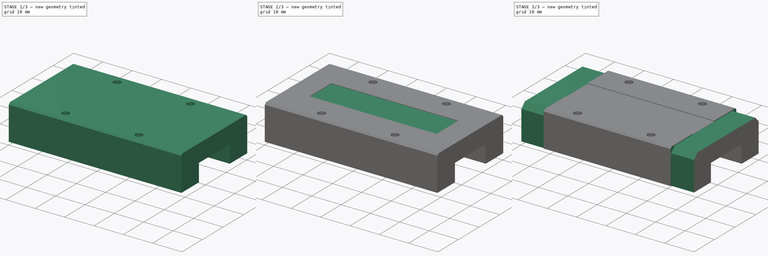
[diagram: build sequence overview — one tinted view per stage of 3, left to right]
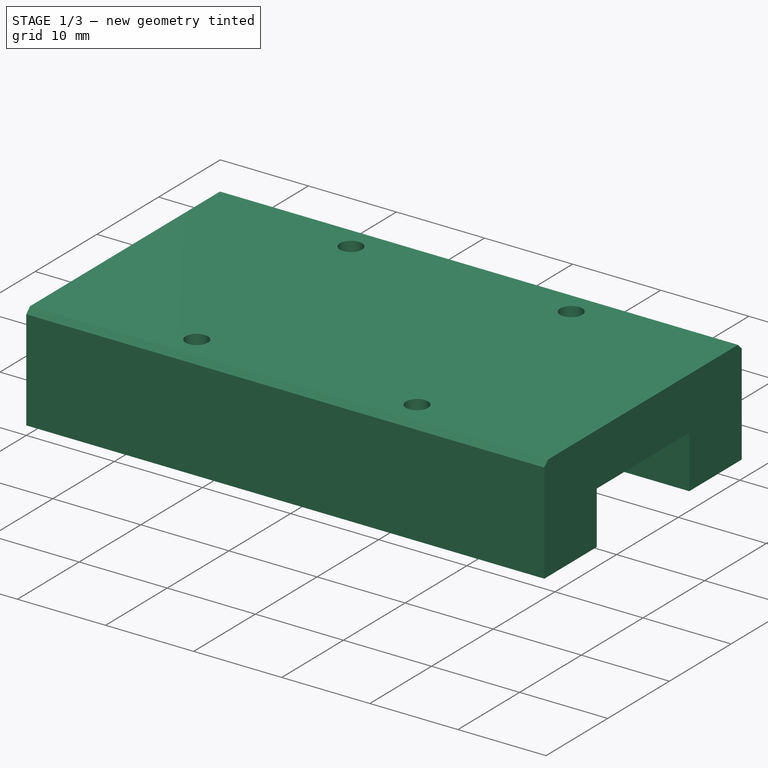
[diagram: stage 1 of 3 — iso view after this stage's code; geometry added in this stage tinted green]
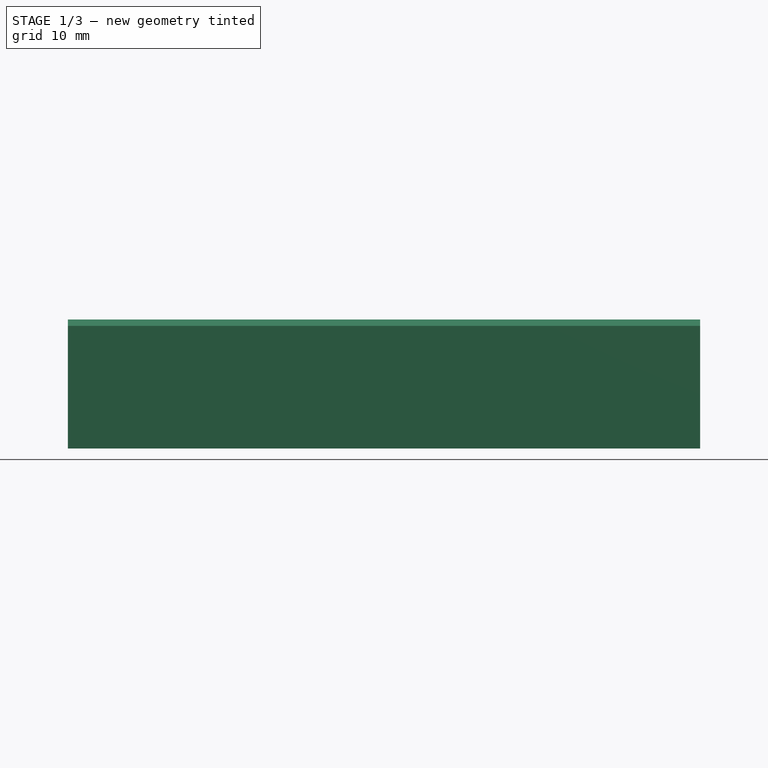
[diagram: stage 1 of 3 — front view after this stage's code; geometry added in this stage tinted green]
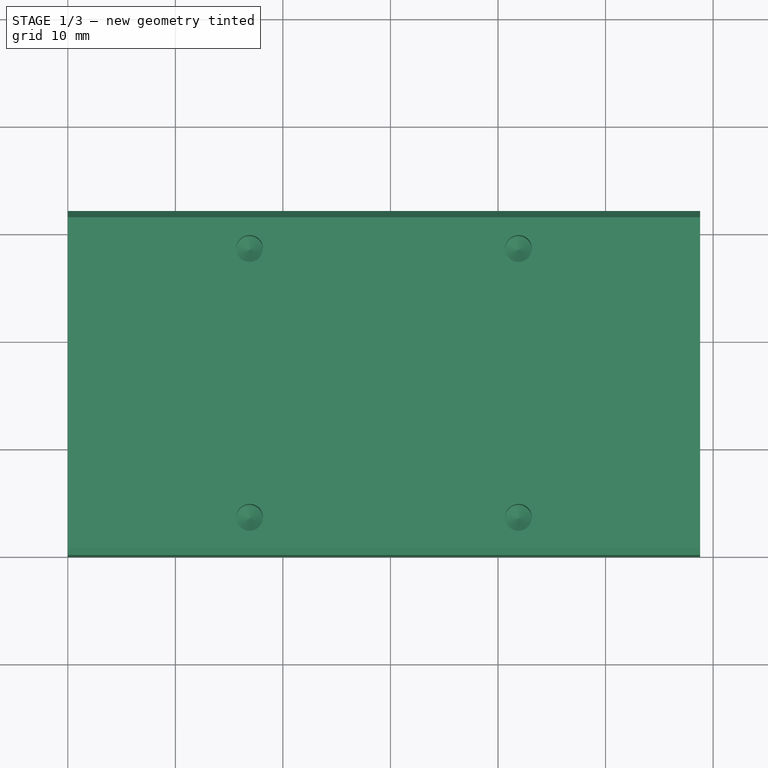
[diagram: stage 1 of 3 — top view after this stage's code; geometry added in this stage tinted green]
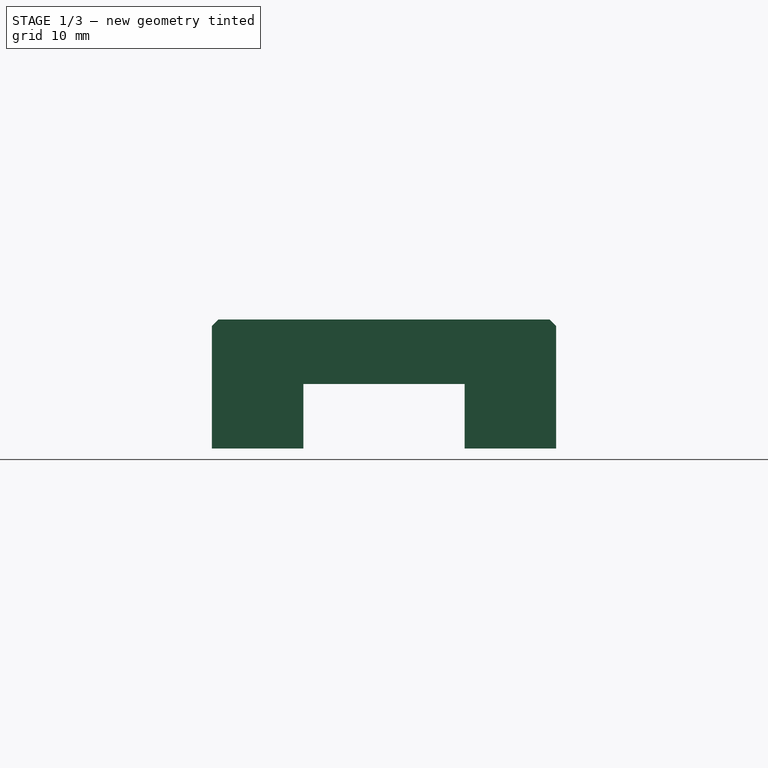
[diagram: stage 1 of 3 — right view after this stage's code; geometry added in this stage tinted green]
FCSTD DOCUMENT  (FreeCAD 0.18R4 (GitTag))
Label: Block MGN15H
License: All rights reserved
LicenseURL: http://en.wikipedia.org/wiki/All_rights_reserved
objects: Sketcher::SketchObject×4, PartDesign::Pocket×2, PartDesign::Pad×1, PartDesign::Hole×1, PartDesign::Point×1, PartDesign::Plane×1, PartDesign::Mirrored×1, PartDesign::Body×1
note: 16 computed .brp shape members not serialized (recipe doc carries the construction recipe); baked Part::Feature solids carry a one-line shape summary decoded from their .brp

FEATURE [Sketcher::SketchObject] Sketch
  MapMode = 5
  Placement = pos=(0,0,0) rot=(0.57735,0.57735,0.57735;2.0944rad)
  Support = -> [YZ_Plane]
  sketch-geometry (10):
    g0: LineSegment StartX=0 StartY=0 StartZ=0 EndX=0 EndY=11.4 EndZ=0
    g1: LineSegment StartX=0 StartY=11.4 StartZ=0 EndX=0.6 EndY=12 EndZ=0
    g2: LineSegment StartX=0.6 StartY=12 StartZ=0 EndX=31.4 EndY=12 EndZ=0
    g3: LineSegment StartX=31.4 StartY=12 StartZ=0 EndX=32 EndY=11.4 EndZ=0
    g4: LineSegment StartX=32 StartY=11.4 StartZ=0 EndX=32 EndY=0 EndZ=0
    g5: LineSegment StartX=0 StartY=0 StartZ=0 EndX=8.5 EndY=0 EndZ=0
    g6: LineSegment StartX=8.5 StartY=0 StartZ=0 EndX=8.5 EndY=6 EndZ=0
    g7: LineSegment StartX=8.5 StartY=6 StartZ=0 EndX=23.5 EndY=6 EndZ=0
    g8: LineSegment StartX=32 StartY=0 StartZ=0 EndX=23.5 EndY=0 EndZ=0
    g9: LineSegment StartX=23.5 StartY=0 StartZ=0 EndX=23.5 EndY=6 EndZ=0
  constraints (29):
    c: Coincident(g-1,g0)
    c: PointOnObject(g0,g-2)
    c: Coincident(g0,g1)
    c: Coincident(g1,g2)
    c: Horizontal(g2)
    c: Coincident(g2,g3)
    c: Coincident(g3,g4)
    c: PointOnObject(g4,g-1)
    c: Vertical(g4)
    c: Coincident(g-1,g5)
    c: Horizontal(g5)
    c: Coincident(g5,g6)
    c: Vertical(g6)
    c: Coincident(g6,g7)
    c: Horizontal(g7)
    c: Coincident(g4,g8)
    c: PointOnObject(g8,g-1)
    c: Coincident(g8,g9)
    c: Coincident(g9,g7)
    c: Vertical(g9)
    c: Angle(g5,g1) = 0.785398
    c: Perpendicular(g3,g1)
    c: Distance(g-1,g4) = 32
    c: Distance(g3,g2) = 0.6
    c: Distance(g-1,g2) = 12
    c: Distance(g5) = 8.5
    c: Horizontal(g3,g0)
    c: Distance(g6) = 6
    c: Equal(g8,g5)
FEATURE [PartDesign::Pad] Pad
  Length = 58.8
  Length2 = 100
  Placement = pos=(0,0,0) rot=(0.57735,0.57735,0.57735;2.0944rad)
  Profile = -> Sketch
  Type = 0
FEATURE [Sketcher::SketchObject] Sketch001
  ExternalGeometry = -> [Pad]
  MapMode = 5
  Placement = pos=(-3.4e-15,5.3e-15,12) rot=(0,0,-1;1.5708rad)
  Support = -> [Pad]
  sketch-geometry (9):
    g0: Circle CenterX=-28.5 CenterY=41.9 CenterZ=0 NormalX=0 NormalY=0 NormalZ=1 AngleXU=0 Radius=1.5
    g1: Circle CenterX=-3.5 CenterY=41.9 CenterZ=0 NormalX=0 NormalY=0 NormalZ=1 AngleXU=0 Radius=1.5
    g2: Circle CenterX=-3.5 CenterY=16.9 CenterZ=0 NormalX=0 NormalY=0 NormalZ=1 AngleXU=0 Radius=1.5
    g3: Circle CenterX=-28.5 CenterY=16.9 CenterZ=0 NormalX=0 NormalY=0 NormalZ=1 AngleXU=0 Radius=1.5
    g4: LineSegment [constr] StartX=-28.5 StartY=41.9 StartZ=0 EndX=-3.5 EndY=16.9 EndZ=0
    g5: LineSegment [constr] StartX=-3.5 StartY=41.9 StartZ=0 EndX=-28.5 EndY=16.9 EndZ=0
    g6: LineSegment [constr] StartX=-32 StartY=58.8 StartZ=0 EndX=0 EndY=0 EndZ=0
    g7: LineSegment [constr] StartX=0 StartY=58.8 StartZ=0 EndX=-32 EndY=0 EndZ=0
    g8: GeomPoint X=-16 Y=29.4 Z=0
  constraints (22):
    c: Horizontal(g2,g3)
    c: Horizontal(g1,g0)
    c: Vertical(g1,g2)
    c: Vertical(g0,g3)
    c: Radius(g2) = 1.5
    c: Equal(g2,g3)
    c: Equal(g3,g0)
    c: Equal(g0,g1)
    c: Distance(g2,g3) = 25
    c: Distance(g3,g0) = 25
    c: Coincident(g4,g0)
    c: Coincident(g4,g2)
    c: Coincident(g5,g1)
    c: Coincident(g5,g3)
    c: Coincident(g6,g-3)
    c: Coincident(g6,g-1)
    c: Coincident(g7,g-4)
    c: Coincident(g7,g-3)
    c: PointOnObject(g8,g7)
    c: PointOnObject(g8,g5)
    c: PointOnObject(g8,g6)
    c: PointOnObject(g8,g4)
FEATURE [PartDesign::Hole] Hole
  BaseFeature = -> Pad
  Depth = 6.8
  DepthType = 0
  Diameter = 2.5
  DrillPoint = 1
  DrillPointAngle = 118
  HoleCutCountersinkAngle = 90
  HoleCutDepth = 0
  HoleCutDiameter = 3
  HoleCutType = 0
  ModelActualThread = false
  Placement = pos=(0,0,0) rot=(0.57735,0.57735,0.57735;2.0944rad)
  Profile = -> Sketch001
  Tapered = false
  TaperedAngle = 45
  ThreadAngle = 60
  ThreadClass = 0
  ThreadCutOffInner = 0.0541266
  ThreadCutOffOuter = 0.108253
  ThreadDirection = 1
  ThreadFit = 0
  ThreadPitch = 0.5
  ThreadSize = 3
  ThreadType = 1
  Threaded = true
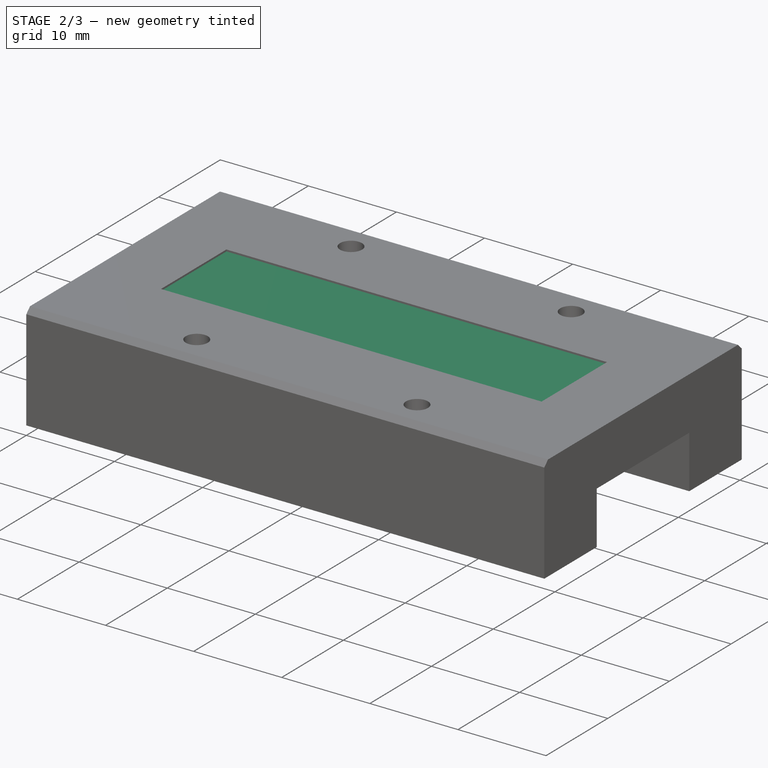
[diagram: stage 2 of 3 — iso view after this stage's code; geometry added in this stage tinted green]
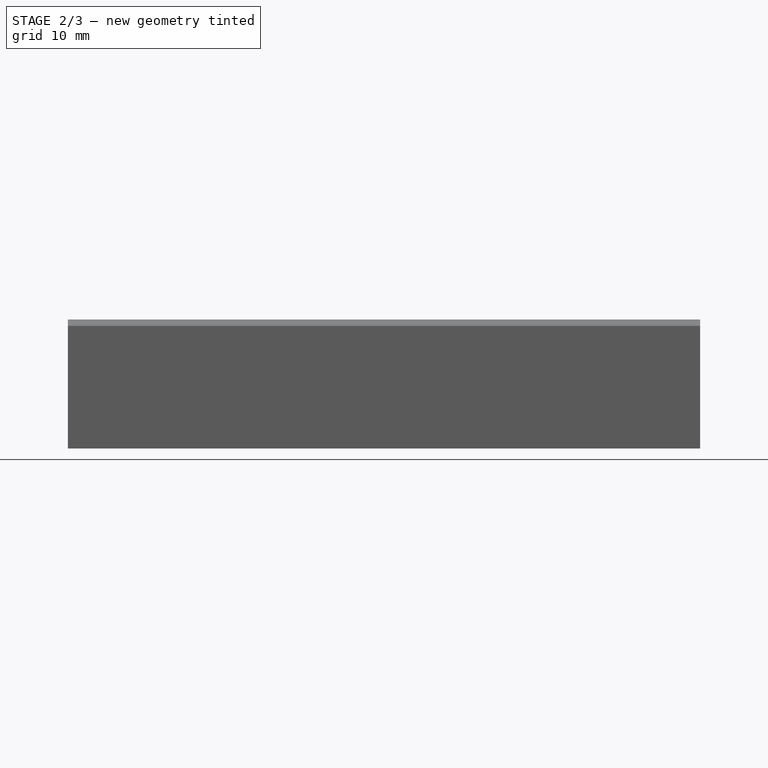
[diagram: stage 2 of 3 — front view after this stage's code; geometry added in this stage tinted green]
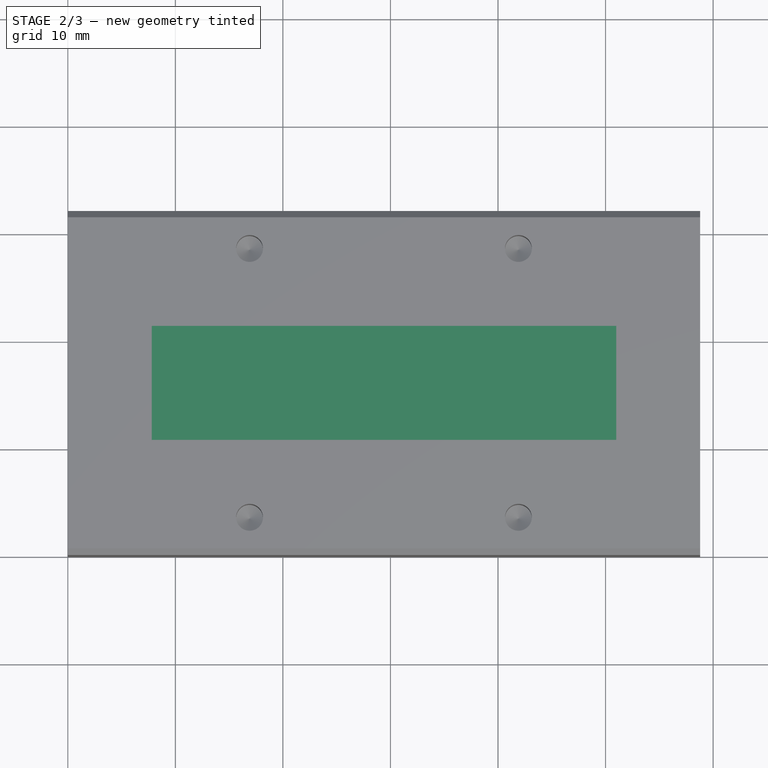
[diagram: stage 2 of 3 — top view after this stage's code; geometry added in this stage tinted green]
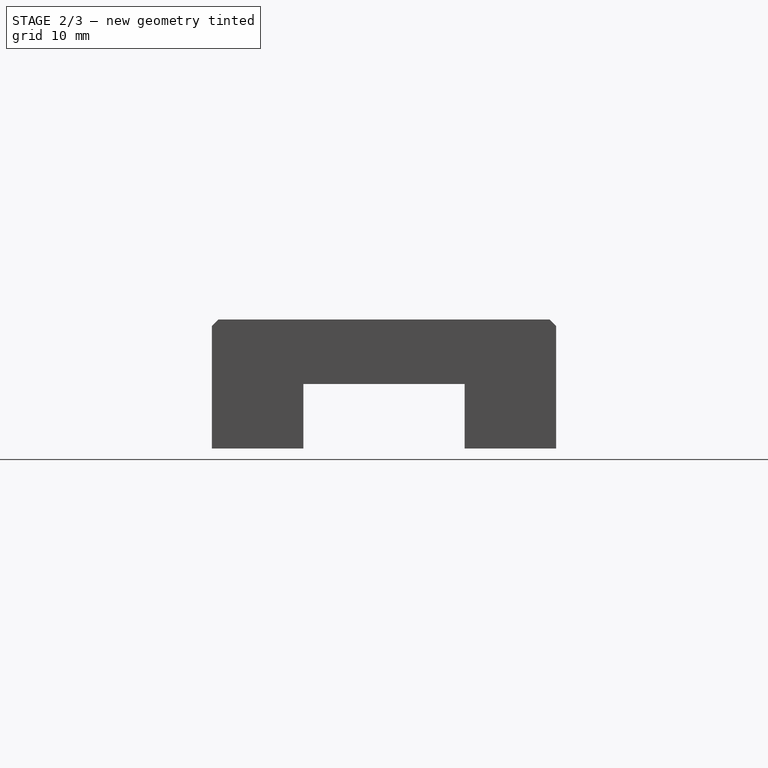
[diagram: stage 2 of 3 — right view after this stage's code; geometry added in this stage tinted green]
FEATURE [Sketcher::SketchObject] Sketch002
  ExternalGeometry = -> [Hole]
  MapMode = 5
  Placement = pos=(-3.4e-15,5.3e-15,12) rot=(0,0,-1;1.5708rad)
  Support = -> [Hole]
  sketch-geometry (8):
    g0: LineSegment StartX=-21.3 StartY=51 StartZ=0 EndX=-10.7 EndY=51 EndZ=0
    g1: LineSegment StartX=-10.7 StartY=51 StartZ=0 EndX=-10.7 EndY=7.8 EndZ=0
    g2: LineSegment StartX=-10.7 StartY=7.8 StartZ=0 EndX=-21.3 EndY=7.8 EndZ=0
    g3: LineSegment StartX=-21.3 StartY=7.8 StartZ=0 EndX=-21.3 EndY=51 EndZ=0
    g4: LineSegment [constr] StartX=-21.3 StartY=51 StartZ=0 EndX=-21.3 EndY=58.8 EndZ=0
    g5: LineSegment [constr] StartX=-21.3 StartY=51 StartZ=0 EndX=-32 EndY=51 EndZ=0
    g6: LineSegment [constr] StartX=-10.7 StartY=51 StartZ=0 EndX=0 EndY=51 EndZ=0
    g7: LineSegment [constr] StartX=-21.3 StartY=7.8 StartZ=0 EndX=-21.3 EndY=0 EndZ=0
  constraints (24):
    c: Coincident(g0,g1)
    c: Coincident(g1,g2)
    c: Coincident(g2,g3)
    c: Coincident(g3,g0)
    c: Horizontal(g0)
    c: Horizontal(g2)
    c: Vertical(g1)
    c: Vertical(g3)
    c: Distance(g3) = 43.2
    c: Distance(g2) = 10.6
    c: Coincident(g4,g0)
    c: PointOnObject(g4,g-4)
    c: Vertical(g4)
    c: Coincident(g5,g0)
    c: PointOnObject(g5,g-3)
    c: Horizontal(g5)
    c: Coincident(g6,g0)
    c: PointOnObject(g6,g-2)
    c: Horizontal(g6)
    c: Coincident(g7,g2)
    c: PointOnObject(g7,g-1)
    c: Vertical(g7)
    c: Equal(g7,g4)
    c: Equal(g5,g6)
FEATURE [PartDesign::Pocket] Pocket
  BaseFeature = -> Hole
  Length = 0.2
  Length2 = 100
  Placement = pos=(0,0,0) rot=(0.57735,0.57735,0.57735;2.0944rad)
  Profile = -> Sketch002
  Type = 0
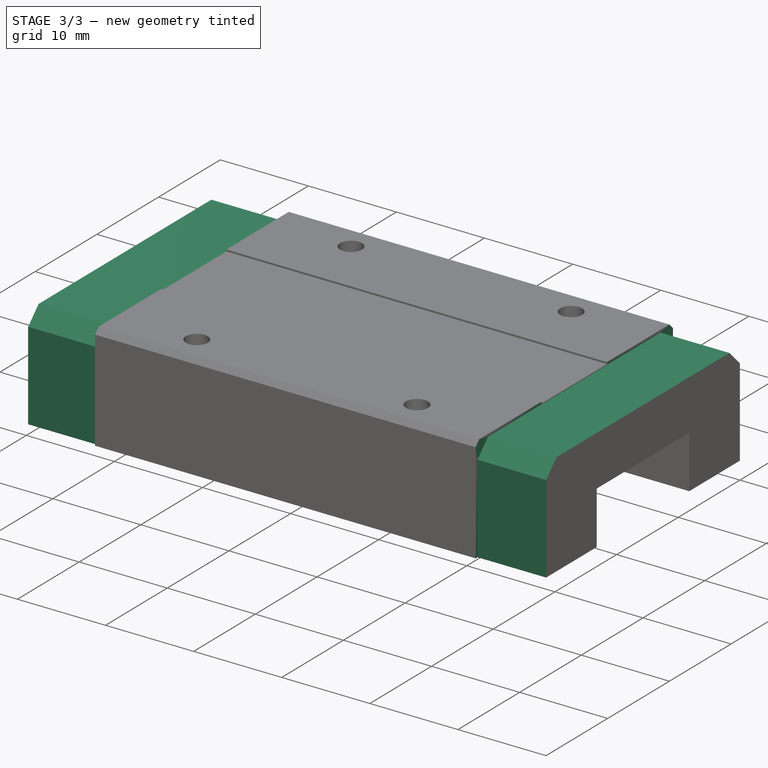
[diagram: stage 3 of 3 — iso view after this stage's code; geometry added in this stage tinted green]
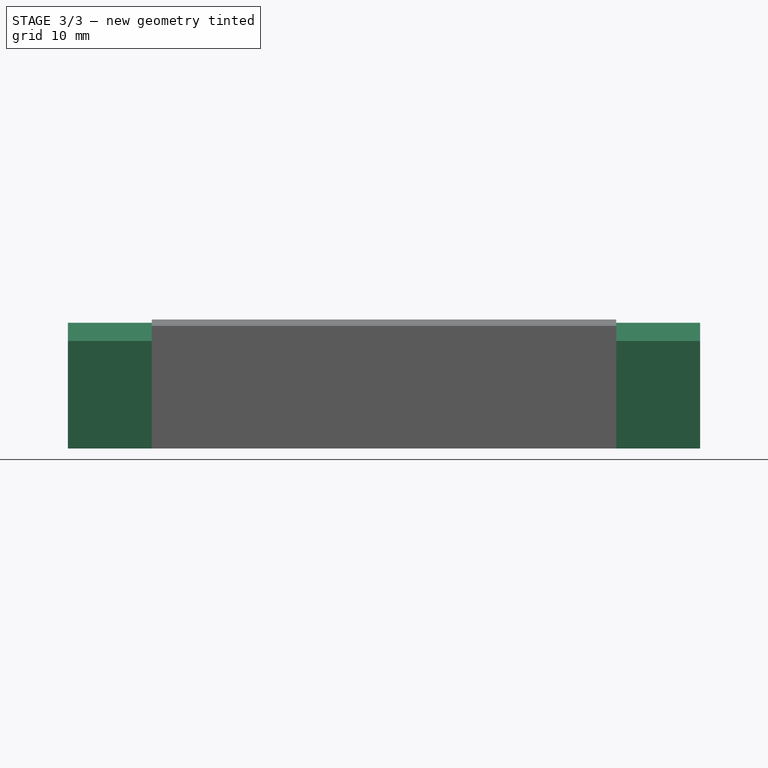
[diagram: stage 3 of 3 — front view after this stage's code; geometry added in this stage tinted green]
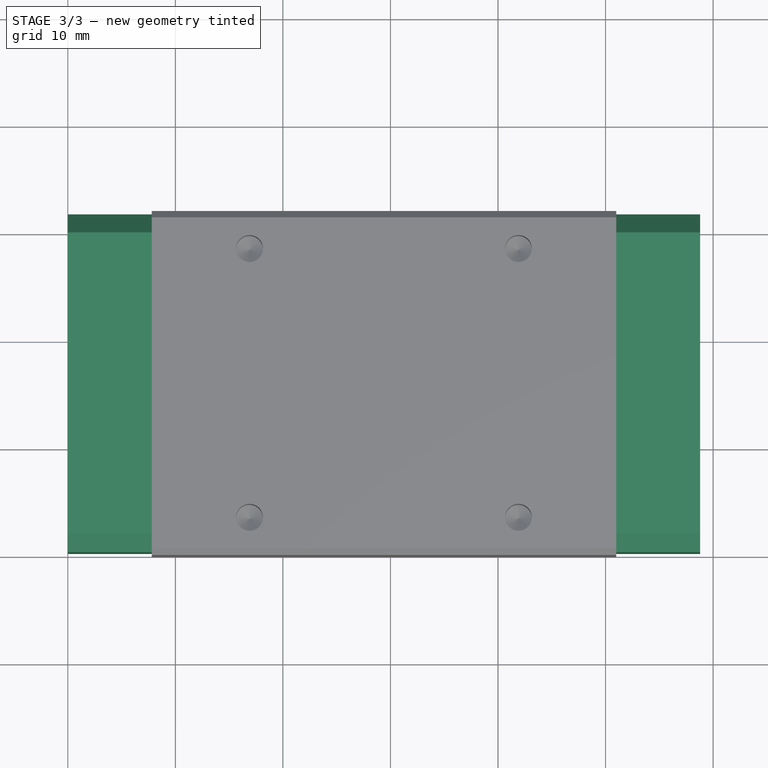
[diagram: stage 3 of 3 — top view after this stage's code; geometry added in this stage tinted green]
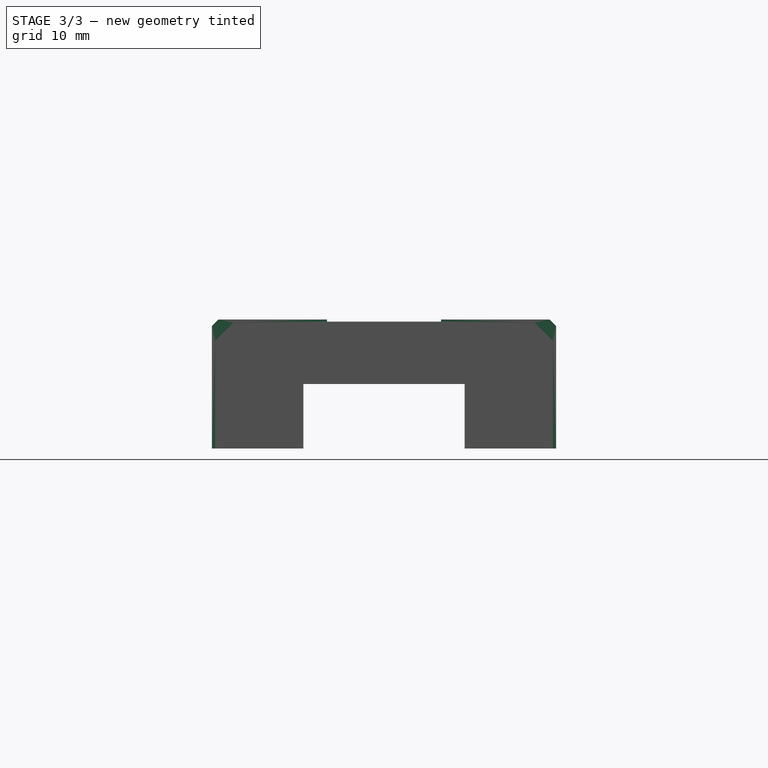
[diagram: stage 3 of 3 — right view after this stage's code; geometry added in this stage tinted green]
FEATURE [Sketcher::SketchObject] Sketch003
  ExternalGeometry = -> [Pocket]
  MapMode = 5
  Placement = pos=(58.8,-1.29e-14,1.29e-14) rot=(0.57735,0.57735,0.57735;2.0944rad)
  Support = -> [Pocket]
  sketch-geometry (13):
    g0: LineSegment StartX=0.3 StartY=0 StartZ=0 EndX=0.3 EndY=10.0029 EndZ=0
    g1: LineSegment StartX=0.3 StartY=10.0029 StartZ=0 EndX=1.99706 EndY=11.7 EndZ=0
    g2: LineSegment StartX=1.99706 StartY=11.7 StartZ=0 EndX=30.0029 EndY=11.7 EndZ=0
    g3: LineSegment StartX=30.0029 StartY=11.7 StartZ=0 EndX=31.7 EndY=10.0029 EndZ=0
    g4: LineSegment StartX=31.7 StartY=10.0029 StartZ=0 EndX=31.7 EndY=0 EndZ=0
    g5: LineSegment [constr] StartX=1.99706 StartY=11.7 StartZ=0 EndX=1.99706 EndY=12 EndZ=0
    g6: LineSegment StartX=32 StartY=0 StartZ=0 EndX=32 EndY=11.4 EndZ=0
    g7: LineSegment StartX=32 StartY=11.4 StartZ=0 EndX=31.4 EndY=12 EndZ=0
    g8: LineSegment StartX=31.4 StartY=12 StartZ=0 EndX=0.6 EndY=12 EndZ=0
    g9: LineSegment StartX=0.6 StartY=12 StartZ=0 EndX=-1.18e-14 EndY=11.4 EndZ=0
    g10: LineSegment StartX=-1.18e-14 StartY=11.4 StartZ=0 EndX=0 EndY=0 EndZ=0
    g11: LineSegment StartX=31.7 StartY=0 StartZ=0 EndX=32 EndY=0 EndZ=0
    g12: LineSegment StartX=0 StartY=0 StartZ=0 EndX=0.3 EndY=0 EndZ=0
  constraints (34):
    c: Vertical(g0)
    c: Coincident(g0,g1)
    c: Coincident(g1,g2)
    c: Horizontal(g2)
    c: Coincident(g2,g3)
    c: Coincident(g3,g4)
    c: Vertical(g4)
    c: Horizontal(g0,g3)
    c: Angle(g0,g1) = 2.35619
    c: Angle(g3,g4) = 2.35619
    c: Coincident(g5,g1)
    c: PointOnObject(g5,g-5)
    c: Vertical(g5)
    c: PointOnObject(g6,g-4)
    c: Distance(g1) = 2.4
    c: Coincident(g6,g-4)
    c: Coincident(g6,g7)
    c: Coincident(g7,g-5)
    c: Coincident(g7,g8)
    c: Coincident(g8,g-5)
    c: Coincident(g8,g9)
    c: Coincident(g9,g-3)
    c: Coincident(g9,g10)
    c: PointOnObject(g4,g-1)
    c: PointOnObject(g0,g-1)
    c: Coincident(g10,g-1)
    c: Coincident(g11,g4)
    c: Coincident(g11,g6)
    c: Horizontal(g11)
    c: Coincident(g12,g10)
    c: Coincident(g12,g0)
    c: Equal(g12,g11)
    c: Equal(g11,g5)
    c: Distance(g12) = 0.3
FEATURE [PartDesign::Pocket] Pocket001
  BaseFeature = -> Pocket
  Length = 0
  Length2 = 100
  Placement = pos=(0,0,0) rot=(0.57735,0.57735,0.57735;2.0944rad)
  Profile = -> Sketch003
  Type = 3
  UpToFace = -> Pocket [Face18]
FEATURE [PartDesign::Point] DatumPoint
  AttacherType = Attacher::AttachEnginePoint
  MapMode = 37
  Placement = pos=(29.4,16,11.8) rot=(0,0,1;0rad)
  Support = -> [Pocket001]
FEATURE [PartDesign::Plane] DatumPlane
  Length = 28.0795
  MapMode = 6
  Placement = pos=(29.4,16,11.8) rot=(0,-1,0;1.5708rad)
  ResizeMode = 0
  Support = -> [DatumPoint,Pocket001]
  Width = 48.0795
FEATURE [PartDesign::Mirrored] Mirrored
  BaseFeature = -> Pocket001
  MirrorPlane = -> DatumPlane
  Originals = -> [Pocket001]
  Placement = pos=(0,0,0) rot=(0.57735,0.57735,0.57735;2.0944rad)
FEATURE [PartDesign::Body] Body
  Group = -> [Sketch,Pad,Sketch001,Hole,Sketch002,Pocket,Sketch003,Pocket001,DatumPoint,DatumPlane,Mirrored]
  Origin = -> Origin
  Tip = -> Mirrored
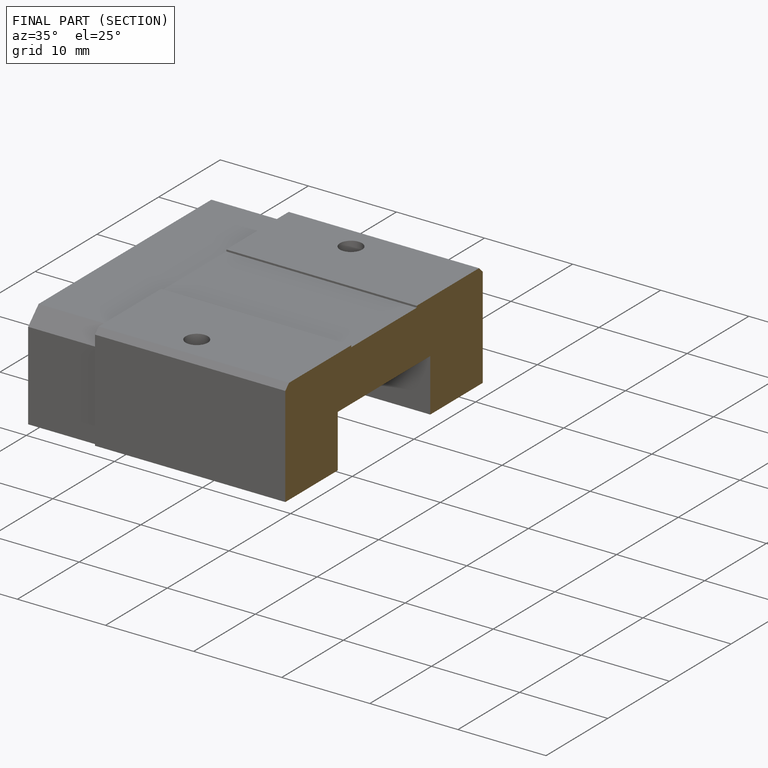
[diagram: finished part — half-section view (interior)]
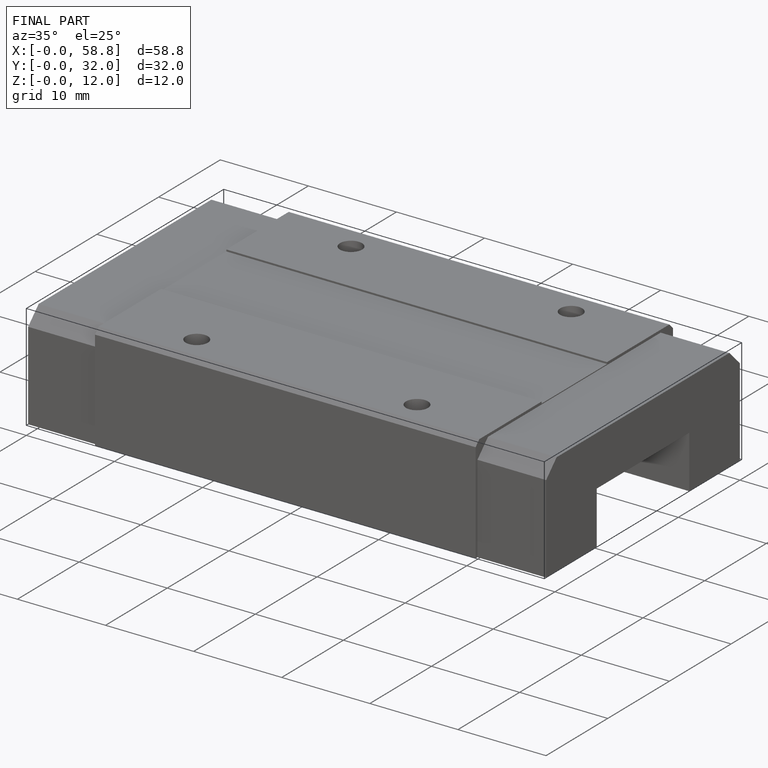
[diagram: finished part — iso view with bounding-box wireframe]
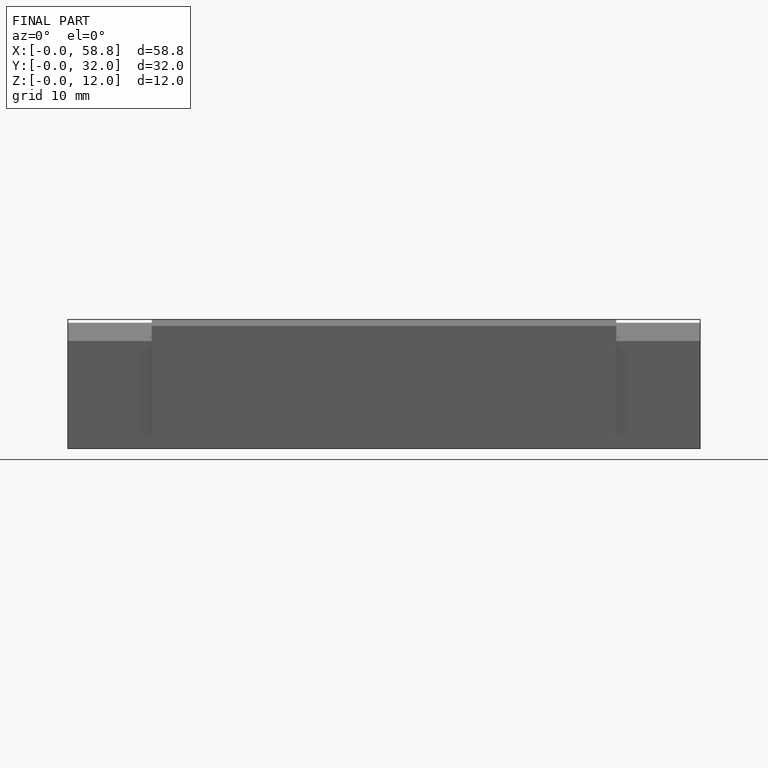
[diagram: finished part — front view with bounding-box wireframe]
